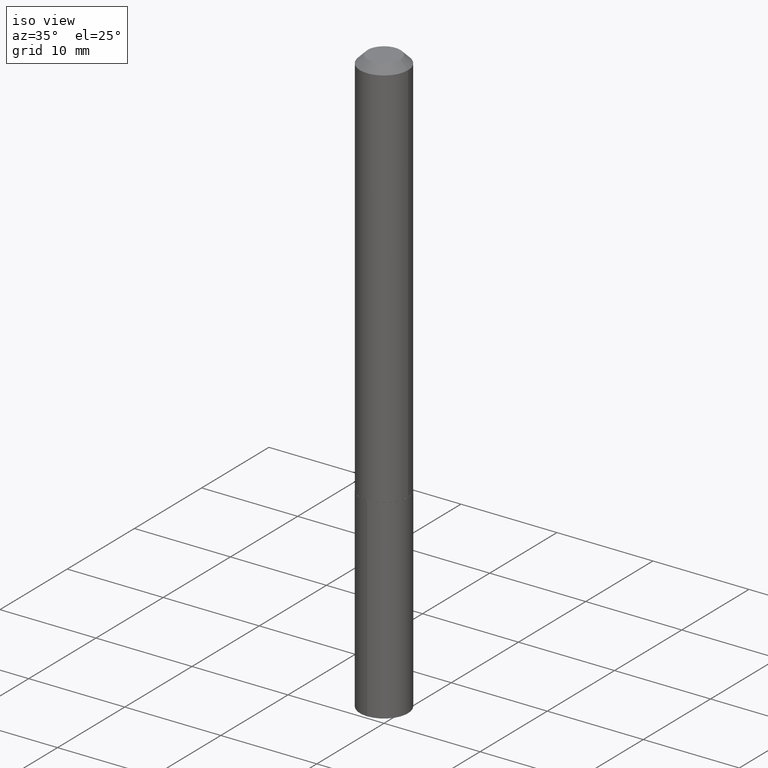
[diagram: clean part render]
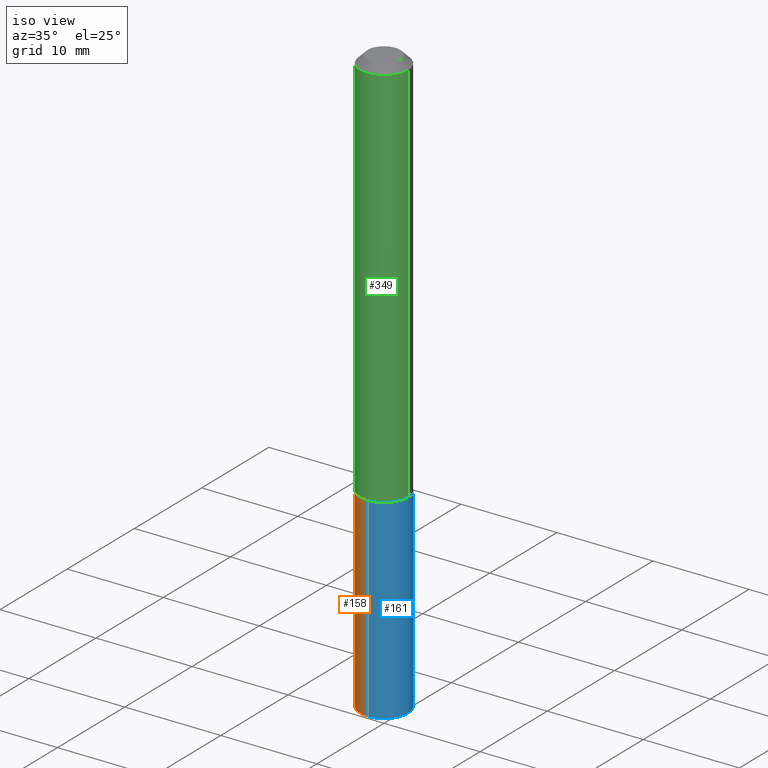
[diagram: same view with three faces highlighted in distinct colors, each labeled with its STEP entity id]
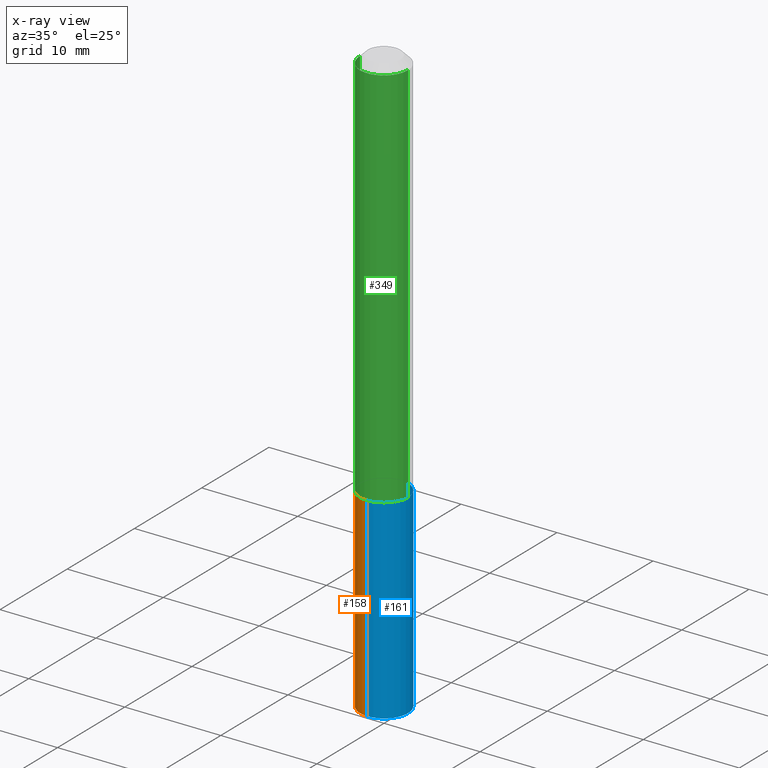
[diagram: x-ray of the same camera — body ghosted, the three highlighted faces saturated]
A machine part, iso view with three faces highlighted in distinct colors.
The next image is the same camera in x-ray (body ghosted, the three faces saturated) — at least one of them is partly hidden behind the body in this view.
Their STEP definitions:

[orange] entity #158 — the highlighted cylindrical surface (edge-blend (fillet) strip) has radius 2.5006 mm, axis along (-0, 0, 1).
#3 = CARTESIAN_POINT ( 'NONE',  ( -6.874726756181734128E-16, -0.09845000000000563023, -1.614199999999999635 ) ) ;
#4 = CIRCLE ( 'NONE', #221, 0.09844999999999999585 ) ;
#9 = DIRECTION ( 'NONE',  ( -6.982962677686265922E-15, -1.000000000000000000, 2.774858297271979165E-15 ) ) ;
#10 = CYLINDRICAL_SURFACE ( 'NONE', #77, 0.09844999999999999585 ) ;
#35 = EDGE_CURVE ( 'NONE', #262, #159, #251, .T. ) ;
#41 = FACE_OUTER_BOUND ( 'NONE', #181, .T. ) ;
#60 = CARTESIAN_POINT ( 'NONE',  ( 5.904358669745989161E-29, -8.430647679871851381E-15, -2.414520402005156718 ) ) ;
#71 = CARTESIAN_POINT ( 'NONE',  ( 3.947475746944047390E-29, -5.635949177160606158E-15, -1.614199999999999857 ) ) ;
#77 = AXIS2_PLACEMENT_3D ( 'NONE', #168, #274, #9 ) ;
#98 = DIRECTION ( 'NONE',  ( -2.445124375061642129E-29, 3.491974583815791773E-15, 1.000000000000000000 ) ) ;
#118 = VERTEX_POINT ( 'NONE', #306 ) ;
#134 = EDGE_CURVE ( 'NONE', #159, #118, #4, .T. ) ;
#145 = AXIS2_PLACEMENT_3D ( 'NONE', #60, #289, #260 ) ;
#149 = ORIENTED_EDGE ( 'NONE', *, *, #302, .T. ) ;
#158 = ADVANCED_FACE ( 'NONE', ( #41 ), #10, .T. ) ;
#159 = VERTEX_POINT ( 'NONE', #373 ) ;
#163 = DIRECTION ( 'NONE',  ( -6.982962677686265922E-15, -1.000000000000000000, 2.774858297271979165E-15 ) ) ;
#168 = CARTESIAN_POINT ( 'NONE',  ( 3.947475746944047390E-29, -5.635949177160606158E-15, -1.614199999999999857 ) ) ;
#180 = CARTESIAN_POINT ( 'NONE',  ( 6.995293233558775708E-16, 0.09844999999999157203, -2.414520402005157163 ) ) ;
#181 = EDGE_LOOP ( 'NONE', ( #216, #298, #149, #241 ) ) ;
#216 = ORIENTED_EDGE ( 'NONE', *, *, #35, .F. ) ;
#220 = VECTOR ( 'NONE', #256, 39.37007874015748143 ) ;
#221 = AXIS2_PLACEMENT_3D ( 'NONE', #71, #313, #163 ) ;
#235 = EDGE_CURVE ( 'NONE', #262, #246, #381, .T. ) ;
#241 = ORIENTED_EDGE ( 'NONE', *, *, #134, .F. ) ;
#246 = VERTEX_POINT ( 'NONE', #356 ) ;
#249 = CARTESIAN_POINT ( 'NONE',  ( 6.995293233558578493E-16, 0.09844999999999436147, -1.614200000000000301 ) ) ;
#251 = LINE ( 'NONE', #249, #339 ) ;
#256 = DIRECTION ( 'NONE',  ( -2.445124375061642129E-29, 3.491974583815791773E-15, 1.000000000000000000 ) ) ;
#260 = DIRECTION ( 'NONE',  ( -6.982962677686265922E-15, -1.000000000000000000, 2.774858297271979165E-15 ) ) ;
#262 = VERTEX_POINT ( 'NONE', #180 ) ;
#274 = DIRECTION ( 'NONE',  ( -2.445124375061642129E-29, 3.491974583815791773E-15, 1.000000000000000000 ) ) ;
#289 = DIRECTION ( 'NONE',  ( -2.445124375061642129E-29, 3.491974583815791773E-15, 1.000000000000000000 ) ) ;
#298 = ORIENTED_EDGE ( 'NONE', *, *, #235, .T. ) ;
#302 = EDGE_CURVE ( 'NONE', #246, #118, #347, .T. ) ;
#306 = CARTESIAN_POINT ( 'NONE',  ( -6.874726756181734128E-16, -0.09845000000000563023, -1.614199999999999635 ) ) ;
#313 = DIRECTION ( 'NONE',  ( -2.445124375061642129E-29, 3.491974583815791773E-15, 1.000000000000000000 ) ) ;
#339 = VECTOR ( 'NONE', #98, 39.37007874015748143 ) ;
#347 = LINE ( 'NONE', #3, #220 ) ;
#356 = CARTESIAN_POINT ( 'NONE',  ( -6.874726756181538885E-16, -0.09845000000000843354, -2.414520402005156718 ) ) ;
#373 = CARTESIAN_POINT ( 'NONE',  ( 6.995293233558776694E-16, 0.09844999999999436147, -1.614200000000000301 ) ) ;
#381 = CIRCLE ( 'NONE', #145, 0.09844999999999999585 ) ;

[blue] entity #161 — the highlighted cylindrical surface (edge-blend (fillet) strip) has radius 2.5006 mm, axis along (-0, 0, 1).
#3 = CARTESIAN_POINT ( 'NONE',  ( -6.874726756181734128E-16, -0.09845000000000563023, -1.614199999999999635 ) ) ;
#11 = FACE_OUTER_BOUND ( 'NONE', #333, .T. ) ;
#12 = DIRECTION ( 'NONE',  ( -6.982962677686265922E-15, -1.000000000000000000, 2.774858297271979165E-15 ) ) ;
#15 = EDGE_CURVE ( 'NONE', #118, #159, #319, .T. ) ;
#35 = EDGE_CURVE ( 'NONE', #262, #159, #251, .T. ) ;
#52 = CIRCLE ( 'NONE', #266, 0.09844999999999999585 ) ;
#86 = AXIS2_PLACEMENT_3D ( 'NONE', #165, #217, #12 ) ;
#98 = DIRECTION ( 'NONE',  ( -2.445124375061642129E-29, 3.491974583815791773E-15, 1.000000000000000000 ) ) ;
#118 = VERTEX_POINT ( 'NONE', #306 ) ;
#119 = AXIS2_PLACEMENT_3D ( 'NONE', #293, #305, #130 ) ;
#130 = DIRECTION ( 'NONE',  ( -6.982962677686265922E-15, -1.000000000000000000, 2.774858297271979165E-15 ) ) ;
#142 = EDGE_CURVE ( 'NONE', #246, #262, #52, .T. ) ;
#146 = ORIENTED_EDGE ( 'NONE', *, *, #15, .F. ) ;
#159 = VERTEX_POINT ( 'NONE', #373 ) ;
#161 = ADVANCED_FACE ( 'NONE', ( #11 ), #341, .T. ) ;
#165 = CARTESIAN_POINT ( 'NONE',  ( 3.947475746944047390E-29, -5.635949177160606158E-15, -1.614199999999999857 ) ) ;
#180 = CARTESIAN_POINT ( 'NONE',  ( 6.995293233558775708E-16, 0.09844999999999157203, -2.414520402005157163 ) ) ;
#217 = DIRECTION ( 'NONE',  ( -2.445124375061642129E-29, 3.491974583815791773E-15, 1.000000000000000000 ) ) ;
#220 = VECTOR ( 'NONE', #256, 39.37007874015748143 ) ;
#243 = ORIENTED_EDGE ( 'NONE', *, *, #35, .T. ) ;
#246 = VERTEX_POINT ( 'NONE', #356 ) ;
#249 = CARTESIAN_POINT ( 'NONE',  ( 6.995293233558578493E-16, 0.09844999999999436147, -1.614200000000000301 ) ) ;
#251 = LINE ( 'NONE', #249, #339 ) ;
#255 = CARTESIAN_POINT ( 'NONE',  ( 5.904358669745989161E-29, -8.430647679871851381E-15, -2.414520402005156718 ) ) ;
#256 = DIRECTION ( 'NONE',  ( -2.445124375061642129E-29, 3.491974583815791773E-15, 1.000000000000000000 ) ) ;
#262 = VERTEX_POINT ( 'NONE', #180 ) ;
#266 = AXIS2_PLACEMENT_3D ( 'NONE', #255, #311, #279 ) ;
#279 = DIRECTION ( 'NONE',  ( -6.982962677686265922E-15, -1.000000000000000000, 2.774858297271979165E-15 ) ) ;
#293 = CARTESIAN_POINT ( 'NONE',  ( 3.947475746944047390E-29, -5.635949177160606158E-15, -1.614199999999999857 ) ) ;
#302 = EDGE_CURVE ( 'NONE', #246, #118, #347, .T. ) ;
#305 = DIRECTION ( 'NONE',  ( -2.445124375061642129E-29, 3.491974583815791773E-15, 1.000000000000000000 ) ) ;
#306 = CARTESIAN_POINT ( 'NONE',  ( -6.874726756181734128E-16, -0.09845000000000563023, -1.614199999999999635 ) ) ;
#311 = DIRECTION ( 'NONE',  ( -2.445124375061642129E-29, 3.491974583815791773E-15, 1.000000000000000000 ) ) ;
#319 = CIRCLE ( 'NONE', #119, 0.09844999999999999585 ) ;
#333 = EDGE_LOOP ( 'NONE', ( #334, #243, #146, #367 ) ) ;
#334 = ORIENTED_EDGE ( 'NONE', *, *, #142, .T. ) ;
#339 = VECTOR ( 'NONE', #98, 39.37007874015748143 ) ;
#341 = CYLINDRICAL_SURFACE ( 'NONE', #86, 0.09844999999999999585 ) ;
#347 = LINE ( 'NONE', #3, #220 ) ;
#356 = CARTESIAN_POINT ( 'NONE',  ( -6.874726756181538885E-16, -0.09845000000000843354, -2.414520402005156718 ) ) ;
#367 = ORIENTED_EDGE ( 'NONE', *, *, #302, .F. ) ;
#373 = CARTESIAN_POINT ( 'NONE',  ( 6.995293233558776694E-16, 0.09844999999999436147, -1.614200000000000301 ) ) ;

[green] entity #349 — the highlighted cylindrical surface (edge-blend (fillet) strip) has radius 2.5006 mm, axis along (-0, 0, 1).
#19 = DIRECTION ( 'NONE',  ( 1.000000000000000000, -6.982962677686267499E-15, 4.876176775795935793E-29 ) ) ;
#24 = ORIENTED_EDGE ( 'NONE', *, *, #55, .T. ) ;
#28 = CARTESIAN_POINT ( 'NONE',  ( 7.642090019328601786E-31, -1.091087918388490144E-16, -0.03125000000000020123 ) ) ;
#38 = CARTESIAN_POINT ( 'NONE',  ( -0.09845000000000020401, -4.934674113135364966E-15, -1.613700000000000134 ) ) ;
#39 = CARTESIAN_POINT ( 'NONE',  ( 0.09845000000000010687, -6.874726756182137434E-16, 4.800596035771104119E-30 ) ) ;
#49 = FACE_OUTER_BOUND ( 'NONE', #335, .T. ) ;
#55 = EDGE_CURVE ( 'NONE', #362, #123, #167, .T. ) ;
#69 = EDGE_CURVE ( 'NONE', #141, #162, #337, .T. ) ;
#79 = CARTESIAN_POINT ( 'NONE',  ( 0.09845000000000020401, -6.321676112109399581E-15, -1.613700000000000134 ) ) ;
#91 = ORIENTED_EDGE ( 'NONE', *, *, #290, .F. ) ;
#93 = ORIENTED_EDGE ( 'NONE', *, *, #69, .F. ) ;
#95 = EDGE_CURVE ( 'NONE', #141, #362, #248, .T. ) ;
#123 = VERTEX_POINT ( 'NONE', #223 ) ;
#132 = CARTESIAN_POINT ( 'NONE',  ( -0.09845000000000010687, 6.995293233558193923E-16, -4.842691596355960348E-30 ) ) ;
#141 = VERTEX_POINT ( 'NONE', #38 ) ;
#143 = DIRECTION ( 'NONE',  ( -2.445468806185136597E-29, 3.491481338843145583E-15, 1.000000000000000000 ) ) ;
#148 = AXIS2_PLACEMENT_3D ( 'NONE', #219, #228, #254 ) ;
#154 = CIRCLE ( 'NONE', #264, 0.09845000000000000973 ) ;
#162 = VERTEX_POINT ( 'NONE', #378 ) ;
#167 = LINE ( 'NONE', #39, #312 ) ;
#171 = CARTESIAN_POINT ( 'NONE',  ( 0.000000000000000000, 0.000000000000000000, 0.000000000000000000 ) ) ;
#174 = VECTOR ( 'NONE', #250, 39.37007874015748143 ) ;
#197 = DIRECTION ( 'NONE',  ( 1.000000000000000000, -6.982962677686266711E-15, 0.000000000000000000 ) ) ;
#219 = CARTESIAN_POINT ( 'NONE',  ( 3.946253012540955150E-29, -5.634203436491184654E-15, -1.613700000000000134 ) ) ;
#223 = CARTESIAN_POINT ( 'NONE',  ( 0.09845000000000000973, -7.965814674570621538E-16, -0.03125000000000020123 ) ) ;
#228 = DIRECTION ( 'NONE',  ( -2.445468806185136597E-29, 3.491481338843145583E-15, 1.000000000000000000 ) ) ;
#239 = ORIENTED_EDGE ( 'NONE', *, *, #95, .T. ) ;
#248 = CIRCLE ( 'NONE', #148, 0.09845000000000020401 ) ;
#250 = DIRECTION ( 'NONE',  ( -2.445468806185136877E-29, 3.491481338843145188E-15, 1.000000000000000000 ) ) ;
#254 = DIRECTION ( 'NONE',  ( 1.000000000000000000, -6.982962677686269866E-15, 0.000000000000000000 ) ) ;
#264 = AXIS2_PLACEMENT_3D ( 'NONE', #28, #143, #197 ) ;
#276 = DIRECTION ( 'NONE',  ( -2.445468806185136877E-29, 3.491481338843145188E-15, 1.000000000000000000 ) ) ;
#283 = DIRECTION ( 'NONE',  ( -2.445468806185136597E-29, 3.491481338843145583E-15, 1.000000000000000000 ) ) ;
#290 = EDGE_CURVE ( 'NONE', #162, #123, #154, .T. ) ;
#312 = VECTOR ( 'NONE', #276, 39.37007874015748143 ) ;
#318 = AXIS2_PLACEMENT_3D ( 'NONE', #171, #283, #19 ) ;
#321 = CYLINDRICAL_SURFACE ( 'NONE', #318, 0.09845000000000010687 ) ;
#335 = EDGE_LOOP ( 'NONE', ( #93, #239, #24, #91 ) ) ;
#337 = LINE ( 'NONE', #132, #174 ) ;
#349 = ADVANCED_FACE ( 'NONE', ( #49 ), #321, .T. ) ;
#362 = VERTEX_POINT ( 'NONE', #79 ) ;
#378 = CARTESIAN_POINT ( 'NONE',  ( -0.09845000000000000973, -2.172126790809196006E-15, -0.03125000000000020123 ) ) ;